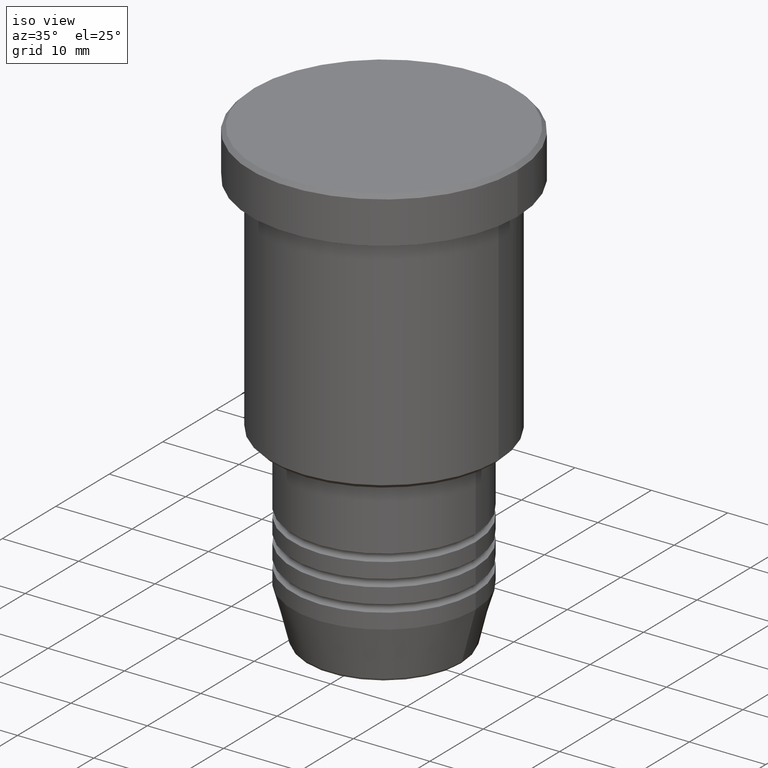
[diagram: clean part render]
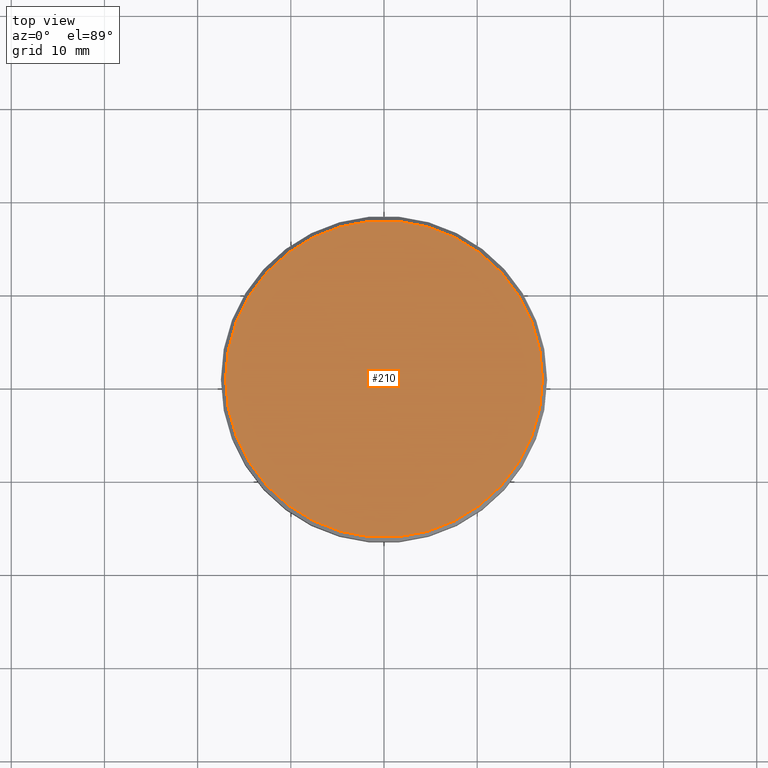
[diagram: tour spotlight — one face highlighted and labeled with its STEP entity id]
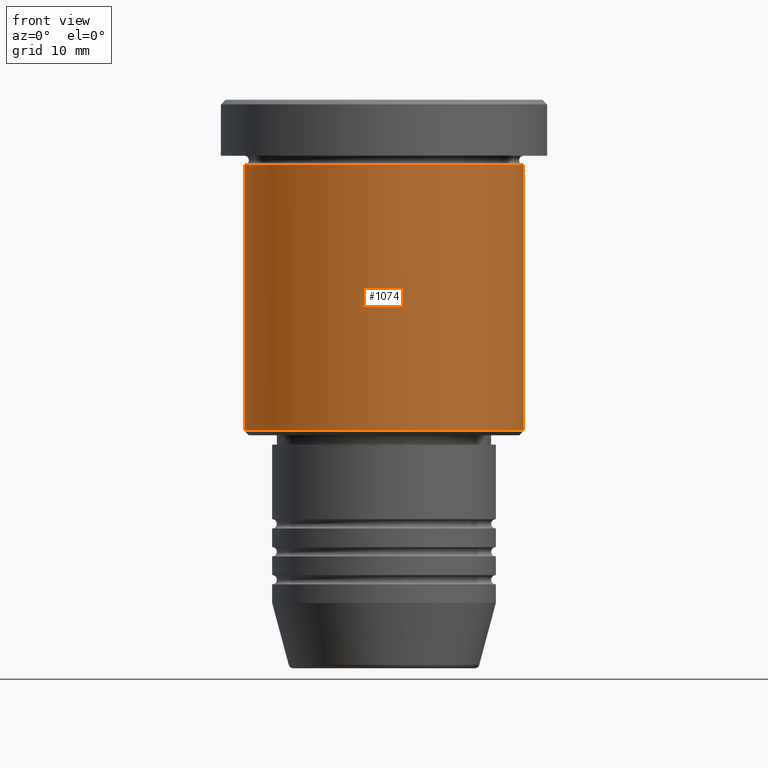
[diagram: tour spotlight — one face highlighted and labeled with its STEP entity id]
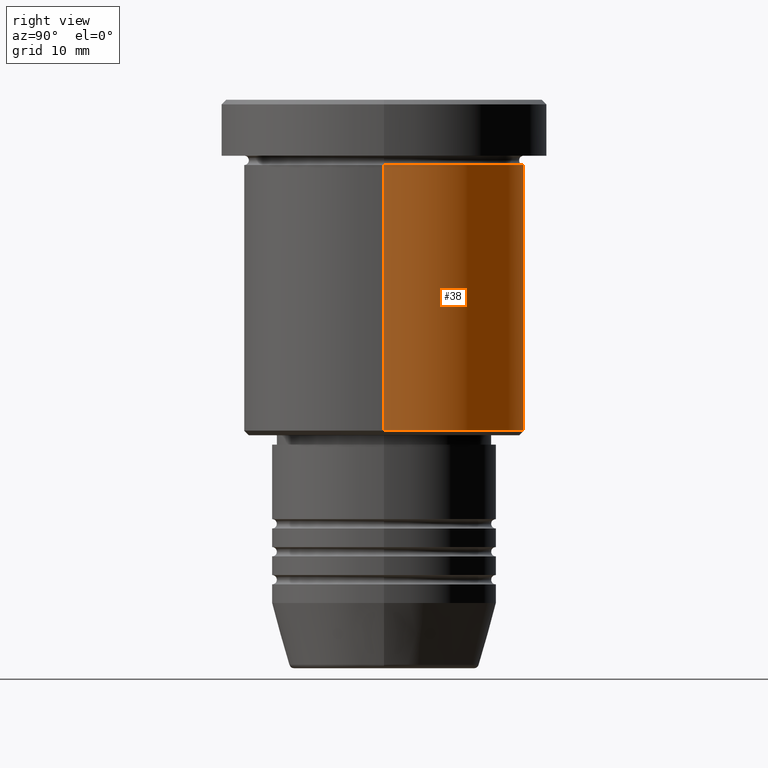
[diagram: tour spotlight — one face highlighted and labeled with its STEP entity id]
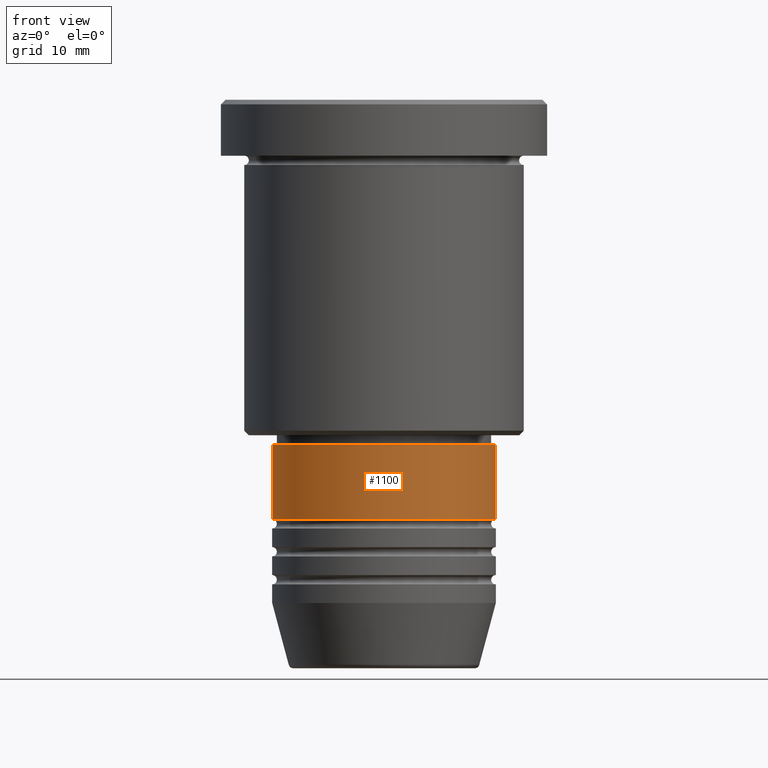
[diagram: tour spotlight — one face highlighted and labeled with its STEP entity id]
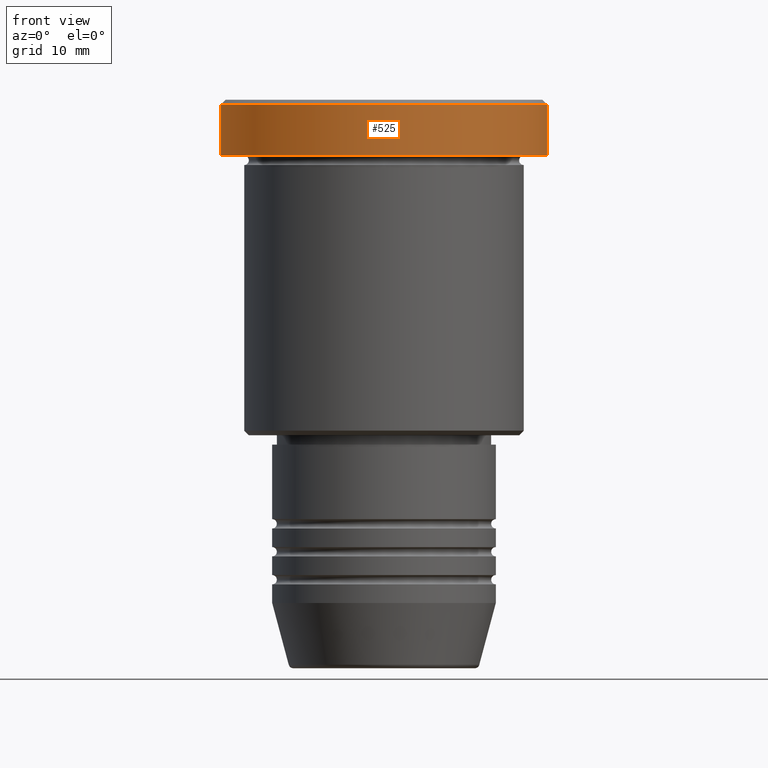
[diagram: tour spotlight — one face highlighted and labeled with its STEP entity id]
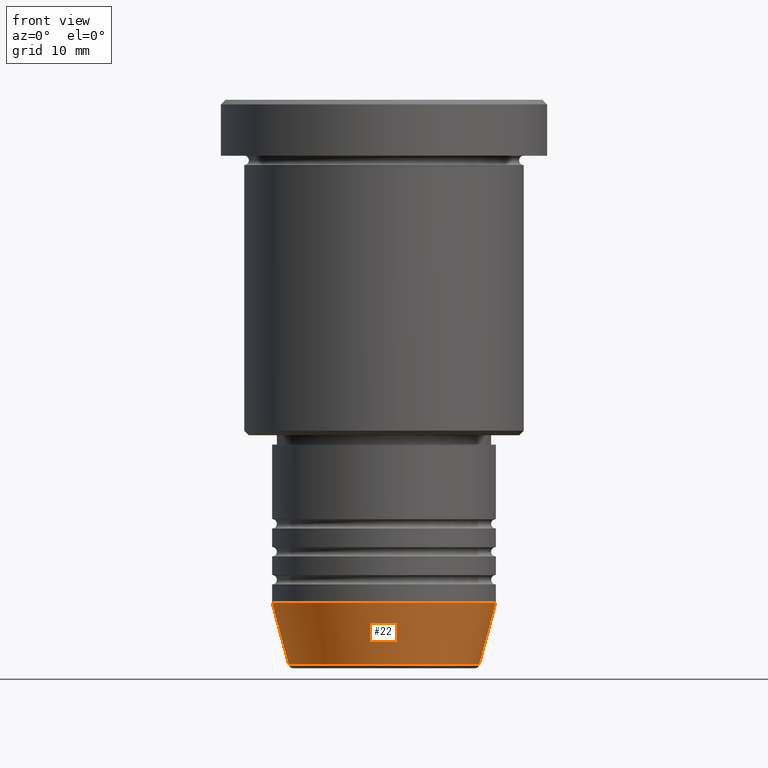
[diagram: tour spotlight — one face highlighted and labeled with its STEP entity id]
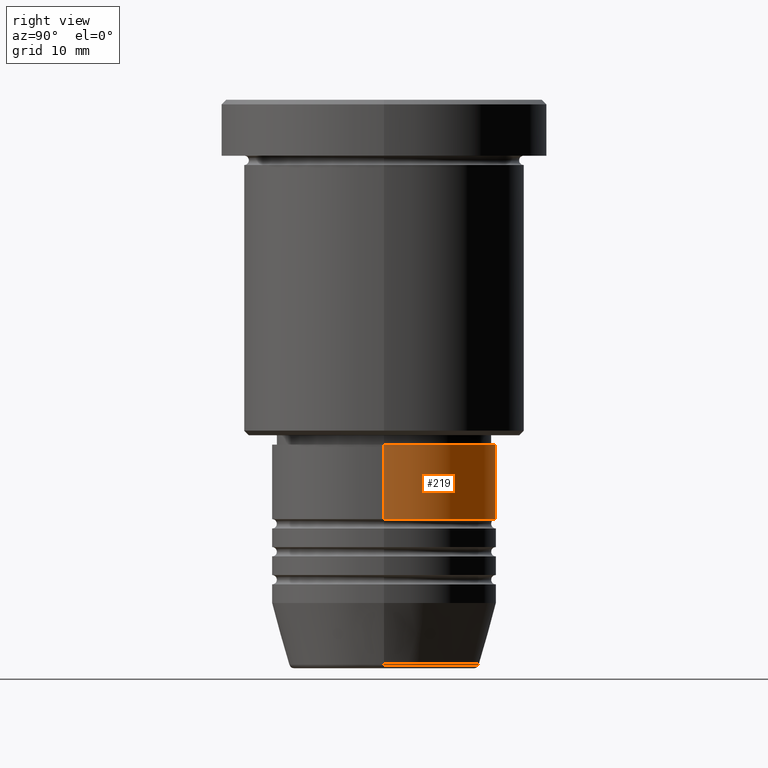
[diagram: tour spotlight — one face highlighted and labeled with its STEP entity id]
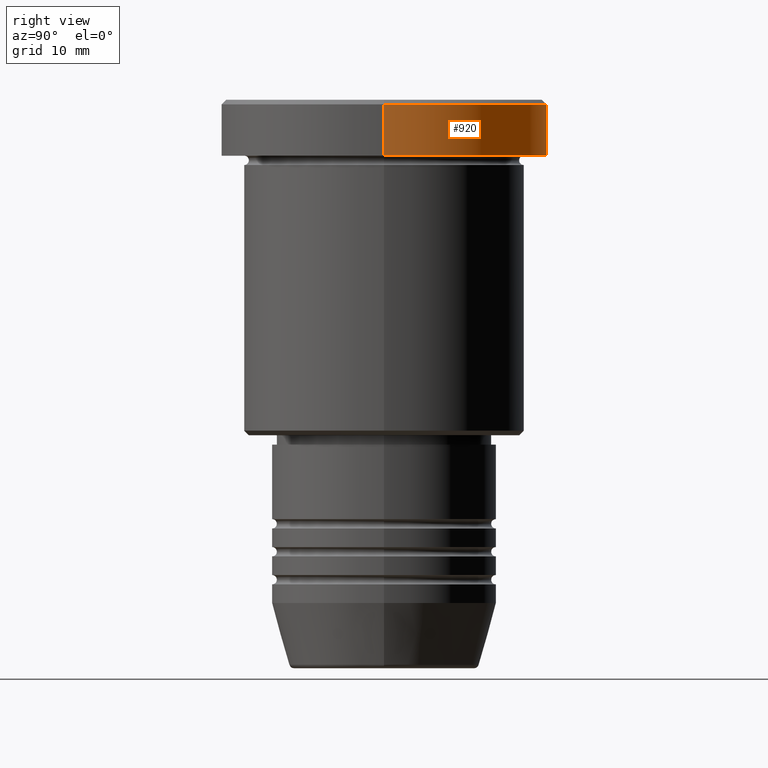
[diagram: tour spotlight — one face highlighted and labeled with its STEP entity id]
A machine part: a face-by-face anatomy tour. The part has 43 B-rep faces; the first image is the clean iso view, then the 8 largest visible faces are spotlighted one at a time (largest first), each with its STEP entity span.

Face 1 — top view, entity #210. In plain terms, the highlighted planar face has unit normal (0, -0, 1).
Definition (entity closure, byte-faithful):
#127 = FACE_OUTER_BOUND ( 'NONE', #468, .T. ) ;
#210 = ADVANCED_FACE ( 'NONE', ( #127 ), #676, .T. ) ;
#266 = DIRECTION ( 'NONE',  ( -0.000000000000000000, -0.000000000000000000, 1.000000000000000000 ) ) ;
#384 = AXIS2_PLACEMENT_3D ( 'NONE', #863, #608, #965 ) ;
#394 = DIRECTION ( 'NONE',  ( 0.000000000000000000, -0.000000000000000000, 1.000000000000000000 ) ) ;
#410 = CARTESIAN_POINT ( 'NONE',  ( 16.99999999999997868, 2.112515728529183278E-15, 0.000000000000000000 ) ) ;
#454 = VERTEX_POINT ( 'NONE', #410 ) ;
#468 = EDGE_LOOP ( 'NONE', ( #754, #755 ) ) ;
#488 = CARTESIAN_POINT ( 'NONE',  ( 0.000000000000000000, 0.000000000000000000, 0.000000000000000000 ) ) ;
#498 = DIRECTION ( 'NONE',  ( 1.000000000000000000, 0.000000000000000000, 0.000000000000000000 ) ) ;
#504 = CIRCLE ( 'NONE', #621, 16.99999999999997868 ) ;
#600 = AXIS2_PLACEMENT_3D ( 'NONE', #488, #394, #498 ) ;
#608 = DIRECTION ( 'NONE',  ( -0.000000000000000000, -0.000000000000000000, 1.000000000000000000 ) ) ;
#621 = AXIS2_PLACEMENT_3D ( 'NONE', #623, #266, #632 ) ;
#622 = CIRCLE ( 'NONE', #384, 16.99999999999997868 ) ;
#623 = CARTESIAN_POINT ( 'NONE',  ( 0.000000000000000000, 0.000000000000000000, 0.000000000000000000 ) ) ;
#632 = DIRECTION ( 'NONE',  ( 1.000000000000000000, 0.000000000000000000, 0.000000000000000000 ) ) ;
#676 = PLANE ( 'NONE',  #600 ) ;
#710 = VERTEX_POINT ( 'NONE', #1152 ) ;
#754 = ORIENTED_EDGE ( 'NONE', *, *, #808, .T. ) ;
#755 = ORIENTED_EDGE ( 'NONE', *, *, #1131, .T. ) ;
#808 = EDGE_CURVE ( 'NONE', #710, #454, #504, .T. ) ;
#863 = CARTESIAN_POINT ( 'NONE',  ( 0.000000000000000000, 0.000000000000000000, 0.000000000000000000 ) ) ;
#965 = DIRECTION ( 'NONE',  ( 1.000000000000000000, 0.000000000000000000, 0.000000000000000000 ) ) ;
#1131 = EDGE_CURVE ( 'NONE', #454, #710, #622, .T. ) ;
#1152 = CARTESIAN_POINT ( 'NONE',  ( -16.99999999999997868, 0.000000000000000000, 0.000000000000000000 ) ) ;

Face 2 — front view, entity #1074. In plain terms, the highlighted cylindrical surface (partial cylindrical patch) has radius 15 mm, axis along (-0, -0, 1).
Definition (entity closure, byte-faithful):
#41 = DIRECTION ( 'NONE',  ( 1.000000000000000000, 0.000000000000000000, 0.000000000000000000 ) ) ;
#56 = DIRECTION ( 'NONE',  ( -0.000000000000000000, -0.000000000000000000, 1.000000000000000000 ) ) ;
#197 = DIRECTION ( 'NONE',  ( -0.000000000000000000, -0.000000000000000000, 1.000000000000000000 ) ) ;
#238 = FACE_OUTER_BOUND ( 'NONE', #248, .T. ) ;
#248 = EDGE_LOOP ( 'NONE', ( #1180, #756, #652, #1181 ) ) ;
#261 = DIRECTION ( 'NONE',  ( -0.000000000000000000, -0.000000000000000000, 1.000000000000000000 ) ) ;
#269 = DIRECTION ( 'NONE',  ( -1.000000000000000000, 0.000000000000000000, 0.000000000000000000 ) ) ;
#320 = CYLINDRICAL_SURFACE ( 'NONE', #364, 15.00000000000000000 ) ;
#347 = CARTESIAN_POINT ( 'NONE',  ( 15.00000000000000000, 0.000000000000000000, 0.000000000000000000 ) ) ;
#355 = VERTEX_POINT ( 'NONE', #494 ) ;
#364 = AXIS2_PLACEMENT_3D ( 'NONE', #695, #1132, #497 ) ;
#443 = AXIS2_PLACEMENT_3D ( 'NONE', #1094, #984, #269 ) ;
#452 = EDGE_CURVE ( 'NONE', #355, #1023, #596, .T. ) ;
#494 = CARTESIAN_POINT ( 'NONE',  ( -15.00000000000000000, 1.836970198721029589E-15, -35.49999999999998579 ) ) ;
#497 = DIRECTION ( 'NONE',  ( 1.000000000000000000, 0.000000000000000000, 0.000000000000000000 ) ) ;
#506 = CARTESIAN_POINT ( 'NONE',  ( -15.00000000000000000, 1.836970198721029589E-15, 0.000000000000000000 ) ) ;
#557 = VERTEX_POINT ( 'NONE', #995 ) ;
#596 = LINE ( 'NONE', #506, #664 ) ;
#652 = ORIENTED_EDGE ( 'NONE', *, *, #826, .T. ) ;
#664 = VECTOR ( 'NONE', #56, 1000.000000000000000 ) ;
#695 = CARTESIAN_POINT ( 'NONE',  ( 0.000000000000000000, 0.000000000000000000, 0.000000000000000000 ) ) ;
#744 = CIRCLE ( 'NONE', #798, 15.00000000000000000 ) ;
#751 = CARTESIAN_POINT ( 'NONE',  ( 15.00000000000000000, 0.000000000000000000, -6.999999999999995559 ) ) ;
#756 = ORIENTED_EDGE ( 'NONE', *, *, #858, .T. ) ;
#798 = AXIS2_PLACEMENT_3D ( 'NONE', #1115, #197, #41 ) ;
#812 = CIRCLE ( 'NONE', #443, 15.00000000000000000 ) ;
#826 = EDGE_CURVE ( 'NONE', #557, #1029, #1081, .T. ) ;
#858 = EDGE_CURVE ( 'NONE', #355, #557, #812, .T. ) ;
#932 = CARTESIAN_POINT ( 'NONE',  ( -15.00000000000000000, 1.836970198721029589E-15, -6.999999999999995559 ) ) ;
#984 = DIRECTION ( 'NONE',  ( -0.000000000000000000, -0.000000000000000000, 1.000000000000000000 ) ) ;
#990 = EDGE_CURVE ( 'NONE', #1023, #1029, #744, .T. ) ;
#995 = CARTESIAN_POINT ( 'NONE',  ( 15.00000000000000000, 0.000000000000000000, -35.49999999999998579 ) ) ;
#1023 = VERTEX_POINT ( 'NONE', #932 ) ;
#1024 = VECTOR ( 'NONE', #261, 1000.000000000000000 ) ;
#1029 = VERTEX_POINT ( 'NONE', #751 ) ;
#1074 = ADVANCED_FACE ( 'NONE', ( #238 ), #320, .T. ) ;
#1081 = LINE ( 'NONE', #347, #1024 ) ;
#1094 = CARTESIAN_POINT ( 'NONE',  ( 0.000000000000000000, 0.000000000000000000, -35.49999999999998579 ) ) ;
#1115 = CARTESIAN_POINT ( 'NONE',  ( 0.000000000000000000, 0.000000000000000000, -6.999999999999995559 ) ) ;
#1132 = DIRECTION ( 'NONE',  ( -0.000000000000000000, -0.000000000000000000, 1.000000000000000000 ) ) ;
#1180 = ORIENTED_EDGE ( 'NONE', *, *, #452, .F. ) ;
#1181 = ORIENTED_EDGE ( 'NONE', *, *, #990, .F. ) ;

Face 3 — right view, entity #38. In plain terms, the highlighted cylindrical surface (partial cylindrical patch) has radius 15 mm, axis along (-0, -0, 1).
Definition (entity closure, byte-faithful):
#9 = AXIS2_PLACEMENT_3D ( 'NONE', #1058, #890, #724 ) ;
#17 = CYLINDRICAL_SURFACE ( 'NONE', #48, 15.00000000000000000 ) ;
#38 = ADVANCED_FACE ( 'NONE', ( #291 ), #17, .T. ) ;
#48 = AXIS2_PLACEMENT_3D ( 'NONE', #286, #993, #182 ) ;
#56 = DIRECTION ( 'NONE',  ( -0.000000000000000000, -0.000000000000000000, 1.000000000000000000 ) ) ;
#130 = AXIS2_PLACEMENT_3D ( 'NONE', #943, #198, #933 ) ;
#176 = ORIENTED_EDGE ( 'NONE', *, *, #324, .T. ) ;
#182 = DIRECTION ( 'NONE',  ( 1.000000000000000000, 0.000000000000000000, 0.000000000000000000 ) ) ;
#189 = EDGE_LOOP ( 'NONE', ( #176, #761, #840, #551 ) ) ;
#198 = DIRECTION ( 'NONE',  ( -0.000000000000000000, -0.000000000000000000, 1.000000000000000000 ) ) ;
#261 = DIRECTION ( 'NONE',  ( -0.000000000000000000, -0.000000000000000000, 1.000000000000000000 ) ) ;
#286 = CARTESIAN_POINT ( 'NONE',  ( 0.000000000000000000, 0.000000000000000000, 0.000000000000000000 ) ) ;
#291 = FACE_OUTER_BOUND ( 'NONE', #189, .T. ) ;
#324 = EDGE_CURVE ( 'NONE', #557, #355, #401, .T. ) ;
#347 = CARTESIAN_POINT ( 'NONE',  ( 15.00000000000000000, 0.000000000000000000, 0.000000000000000000 ) ) ;
#355 = VERTEX_POINT ( 'NONE', #494 ) ;
#401 = CIRCLE ( 'NONE', #130, 15.00000000000000000 ) ;
#452 = EDGE_CURVE ( 'NONE', #355, #1023, #596, .T. ) ;
#494 = CARTESIAN_POINT ( 'NONE',  ( -15.00000000000000000, 1.836970198721029589E-15, -35.49999999999998579 ) ) ;
#506 = CARTESIAN_POINT ( 'NONE',  ( -15.00000000000000000, 1.836970198721029589E-15, 0.000000000000000000 ) ) ;
#511 = EDGE_CURVE ( 'NONE', #1029, #1023, #517, .T. ) ;
#517 = CIRCLE ( 'NONE', #9, 15.00000000000000000 ) ;
#551 = ORIENTED_EDGE ( 'NONE', *, *, #826, .F. ) ;
#557 = VERTEX_POINT ( 'NONE', #995 ) ;
#596 = LINE ( 'NONE', #506, #664 ) ;
#664 = VECTOR ( 'NONE', #56, 1000.000000000000000 ) ;
#724 = DIRECTION ( 'NONE',  ( 1.000000000000000000, 0.000000000000000000, 0.000000000000000000 ) ) ;
#751 = CARTESIAN_POINT ( 'NONE',  ( 15.00000000000000000, 0.000000000000000000, -6.999999999999995559 ) ) ;
#761 = ORIENTED_EDGE ( 'NONE', *, *, #452, .T. ) ;
#826 = EDGE_CURVE ( 'NONE', #557, #1029, #1081, .T. ) ;
#840 = ORIENTED_EDGE ( 'NONE', *, *, #511, .F. ) ;
#890 = DIRECTION ( 'NONE',  ( -0.000000000000000000, -0.000000000000000000, 1.000000000000000000 ) ) ;
#932 = CARTESIAN_POINT ( 'NONE',  ( -15.00000000000000000, 1.836970198721029589E-15, -6.999999999999995559 ) ) ;
#933 = DIRECTION ( 'NONE',  ( -1.000000000000000000, 0.000000000000000000, 0.000000000000000000 ) ) ;
#943 = CARTESIAN_POINT ( 'NONE',  ( 0.000000000000000000, 0.000000000000000000, -35.49999999999998579 ) ) ;
#993 = DIRECTION ( 'NONE',  ( -0.000000000000000000, -0.000000000000000000, 1.000000000000000000 ) ) ;
#995 = CARTESIAN_POINT ( 'NONE',  ( 15.00000000000000000, 0.000000000000000000, -35.49999999999998579 ) ) ;
#1023 = VERTEX_POINT ( 'NONE', #932 ) ;
#1024 = VECTOR ( 'NONE', #261, 1000.000000000000000 ) ;
#1029 = VERTEX_POINT ( 'NONE', #751 ) ;
#1058 = CARTESIAN_POINT ( 'NONE',  ( 0.000000000000000000, 0.000000000000000000, -6.999999999999995559 ) ) ;
#1081 = LINE ( 'NONE', #347, #1024 ) ;

Face 4 — front view, entity #1100. In plain terms, the highlighted cylindrical surface (partial cylindrical patch) has radius 12 mm, axis along (-0, -0, 1).
Definition (entity closure, byte-faithful):
#1 = EDGE_CURVE ( 'NONE', #283, #112, #82, .T. ) ;
#2 = DIRECTION ( 'NONE',  ( -0.000000000000000000, -0.000000000000000000, 1.000000000000000000 ) ) ;
#4 = DIRECTION ( 'NONE',  ( 1.000000000000000000, 0.000000000000000000, 0.000000000000000000 ) ) ;
#30 = AXIS2_PLACEMENT_3D ( 'NONE', #752, #650, #1117 ) ;
#58 = DIRECTION ( 'NONE',  ( 1.000000000000000000, 0.000000000000000000, 0.000000000000000000 ) ) ;
#82 = CIRCLE ( 'NONE', #30, 12.00000000000000000 ) ;
#112 = VERTEX_POINT ( 'NONE', #1034 ) ;
#113 = AXIS2_PLACEMENT_3D ( 'NONE', #591, #873, #58 ) ;
#243 = EDGE_CURVE ( 'NONE', #810, #112, #780, .T. ) ;
#283 = VERTEX_POINT ( 'NONE', #696 ) ;
#358 = CARTESIAN_POINT ( 'NONE',  ( 12.00000000000000000, 0.000000000000000000, -44.99999999999997158 ) ) ;
#415 = CARTESIAN_POINT ( 'NONE',  ( -12.00000000000000000, 1.469576158976823947E-15, -44.99999999999997158 ) ) ;
#445 = CARTESIAN_POINT ( 'NONE',  ( 0.000000000000000000, 0.000000000000000000, -44.99999999999997158 ) ) ;
#478 = ORIENTED_EDGE ( 'NONE', *, *, #1, .F. ) ;
#520 = AXIS2_PLACEMENT_3D ( 'NONE', #445, #1178, #4 ) ;
#591 = CARTESIAN_POINT ( 'NONE',  ( 0.000000000000000000, 0.000000000000000000, 0.000000000000000000 ) ) ;
#640 = LINE ( 'NONE', #1003, #1121 ) ;
#650 = DIRECTION ( 'NONE',  ( -0.000000000000000000, -0.000000000000000000, 1.000000000000000000 ) ) ;
#696 = CARTESIAN_POINT ( 'NONE',  ( -12.00000000000000000, 1.469576158976823947E-15, -36.99999999999999289 ) ) ;
#703 = CYLINDRICAL_SURFACE ( 'NONE', #113, 12.00000000000000000 ) ;
#731 = ORIENTED_EDGE ( 'NONE', *, *, #243, .T. ) ;
#752 = CARTESIAN_POINT ( 'NONE',  ( 0.000000000000000000, 0.000000000000000000, -36.99999999999999289 ) ) ;
#763 = ORIENTED_EDGE ( 'NONE', *, *, #770, .T. ) ;
#770 = EDGE_CURVE ( 'NONE', #1128, #810, #1045, .T. ) ;
#780 = LINE ( 'NONE', #1095, #1060 ) ;
#810 = VERTEX_POINT ( 'NONE', #358 ) ;
#873 = DIRECTION ( 'NONE',  ( -0.000000000000000000, -0.000000000000000000, 1.000000000000000000 ) ) ;
#874 = EDGE_CURVE ( 'NONE', #1128, #283, #640, .T. ) ;
#969 = DIRECTION ( 'NONE',  ( -0.000000000000000000, -0.000000000000000000, 1.000000000000000000 ) ) ;
#1003 = CARTESIAN_POINT ( 'NONE',  ( -12.00000000000000000, 1.469576158976823947E-15, 0.000000000000000000 ) ) ;
#1016 = ORIENTED_EDGE ( 'NONE', *, *, #874, .F. ) ;
#1034 = CARTESIAN_POINT ( 'NONE',  ( 12.00000000000000000, 0.000000000000000000, -36.99999999999999289 ) ) ;
#1045 = CIRCLE ( 'NONE', #520, 12.00000000000000000 ) ;
#1060 = VECTOR ( 'NONE', #2, 1000.000000000000000 ) ;
#1084 = EDGE_LOOP ( 'NONE', ( #1016, #763, #731, #478 ) ) ;
#1095 = CARTESIAN_POINT ( 'NONE',  ( 12.00000000000000000, 0.000000000000000000, 0.000000000000000000 ) ) ;
#1100 = ADVANCED_FACE ( 'NONE', ( #1145 ), #703, .T. ) ;
#1117 = DIRECTION ( 'NONE',  ( 1.000000000000000000, 0.000000000000000000, 0.000000000000000000 ) ) ;
#1121 = VECTOR ( 'NONE', #969, 1000.000000000000000 ) ;
#1128 = VERTEX_POINT ( 'NONE', #415 ) ;
#1145 = FACE_OUTER_BOUND ( 'NONE', #1084, .T. ) ;
#1178 = DIRECTION ( 'NONE',  ( -0.000000000000000000, -0.000000000000000000, 1.000000000000000000 ) ) ;

Face 5 — front view, entity #525. In plain terms, the highlighted cylindrical surface (partial cylindrical patch) has radius 17.5 mm, axis along (-0, -0, 1).
Definition (entity closure, byte-faithful):
#87 = CIRCLE ( 'NONE', #150, 17.50000000000000000 ) ;
#120 = CARTESIAN_POINT ( 'NONE',  ( -17.50000000000000000, 2.143131898507868248E-15, 0.000000000000000000 ) ) ;
#124 = VERTEX_POINT ( 'NONE', #407 ) ;
#150 = AXIS2_PLACEMENT_3D ( 'NONE', #396, #1049, #686 ) ;
#154 = LINE ( 'NONE', #775, #444 ) ;
#166 = VERTEX_POINT ( 'NONE', #508 ) ;
#193 = CARTESIAN_POINT ( 'NONE',  ( 17.50000000000000000, 0.000000000000000000, -0.5000000000000143219 ) ) ;
#220 = DIRECTION ( 'NONE',  ( -0.000000000000000000, -0.000000000000000000, 1.000000000000000000 ) ) ;
#245 = CARTESIAN_POINT ( 'NONE',  ( -17.50000000000000000, 2.143131898507868248E-15, -0.5000000000000143219 ) ) ;
#294 = ORIENTED_EDGE ( 'NONE', *, *, #1087, .T. ) ;
#312 = AXIS2_PLACEMENT_3D ( 'NONE', #746, #648, #1012 ) ;
#380 = CIRCLE ( 'NONE', #503, 17.50000000000000000 ) ;
#396 = CARTESIAN_POINT ( 'NONE',  ( 0.000000000000000000, 0.000000000000000000, -0.5000000000000143219 ) ) ;
#407 = CARTESIAN_POINT ( 'NONE',  ( 17.50000000000000000, 0.000000000000000000, -5.999999999999995559 ) ) ;
#411 = EDGE_CURVE ( 'NONE', #166, #124, #380, .T. ) ;
#436 = DIRECTION ( 'NONE',  ( 1.000000000000000000, 0.000000000000000000, 0.000000000000000000 ) ) ;
#444 = VECTOR ( 'NONE', #510, 1000.000000000000000 ) ;
#449 = CARTESIAN_POINT ( 'NONE',  ( 0.000000000000000000, 0.000000000000000000, -5.999999999999995559 ) ) ;
#503 = AXIS2_PLACEMENT_3D ( 'NONE', #449, #546, #436 ) ;
#508 = CARTESIAN_POINT ( 'NONE',  ( -17.50000000000000000, 2.143131898507868248E-15, -5.999999999999995559 ) ) ;
#510 = DIRECTION ( 'NONE',  ( -0.000000000000000000, -0.000000000000000000, 1.000000000000000000 ) ) ;
#525 = ADVANCED_FACE ( 'NONE', ( #631 ), #675, .T. ) ;
#535 = VERTEX_POINT ( 'NONE', #193 ) ;
#546 = DIRECTION ( 'NONE',  ( -0.000000000000000000, -0.000000000000000000, 1.000000000000000000 ) ) ;
#570 = VECTOR ( 'NONE', #220, 1000.000000000000000 ) ;
#612 = VERTEX_POINT ( 'NONE', #245 ) ;
#631 = FACE_OUTER_BOUND ( 'NONE', #689, .T. ) ;
#648 = DIRECTION ( 'NONE',  ( -0.000000000000000000, -0.000000000000000000, 1.000000000000000000 ) ) ;
#675 = CYLINDRICAL_SURFACE ( 'NONE', #312, 17.50000000000000000 ) ;
#686 = DIRECTION ( 'NONE',  ( 1.000000000000000000, 0.000000000000000000, 0.000000000000000000 ) ) ;
#689 = EDGE_LOOP ( 'NONE', ( #732, #790, #294, #1013 ) ) ;
#732 = ORIENTED_EDGE ( 'NONE', *, *, #963, .F. ) ;
#746 = CARTESIAN_POINT ( 'NONE',  ( 0.000000000000000000, 0.000000000000000000, 0.000000000000000000 ) ) ;
#775 = CARTESIAN_POINT ( 'NONE',  ( 17.50000000000000000, 0.000000000000000000, 0.000000000000000000 ) ) ;
#790 = ORIENTED_EDGE ( 'NONE', *, *, #411, .T. ) ;
#937 = LINE ( 'NONE', #120, #570 ) ;
#963 = EDGE_CURVE ( 'NONE', #166, #612, #937, .T. ) ;
#1012 = DIRECTION ( 'NONE',  ( 1.000000000000000000, 0.000000000000000000, 0.000000000000000000 ) ) ;
#1013 = ORIENTED_EDGE ( 'NONE', *, *, #1148, .T. ) ;
#1049 = DIRECTION ( 'NONE',  ( 0.000000000000000000, 0.000000000000000000, -1.000000000000000000 ) ) ;
#1087 = EDGE_CURVE ( 'NONE', #124, #535, #154, .T. ) ;
#1148 = EDGE_CURVE ( 'NONE', #535, #612, #87, .T. ) ;

Face 6 — front view, entity #22. In plain terms, the highlighted conical surface has half-angle 15 deg.
Definition (entity closure, byte-faithful):
#12 = CIRCLE ( 'NONE', #945, 10.22365507213719305 ) ;
#22 = ADVANCED_FACE ( 'NONE', ( #460 ), #487, .T. ) ;
#27 = CARTESIAN_POINT ( 'NONE',  ( 0.000000000000000000, 0.000000000000000000, -60.62940952255125637 ) ) ;
#60 = DIRECTION ( 'NONE',  ( 1.000000000000000000, 0.000000000000000000, 0.000000000000000000 ) ) ;
#61 = ORIENTED_EDGE ( 'NONE', *, *, #791, .T. ) ;
#74 = VERTEX_POINT ( 'NONE', #819 ) ;
#97 = ORIENTED_EDGE ( 'NONE', *, *, #191, .F. ) ;
#172 = VERTEX_POINT ( 'NONE', #869 ) ;
#191 = EDGE_CURVE ( 'NONE', #172, #645, #302, .T. ) ;
#217 = DIRECTION ( 'NONE',  ( -0.2588190451025213501, 3.169619151431772337E-17, 0.9659258262890680902 ) ) ;
#232 = EDGE_LOOP ( 'NONE', ( #97, #356, #61, #1032 ) ) ;
#302 = LINE ( 'NONE', #1130, #954 ) ;
#340 = DIRECTION ( 'NONE',  ( 0.2588190451025213501, 0.000000000000000000, 0.9659258262890680902 ) ) ;
#356 = ORIENTED_EDGE ( 'NONE', *, *, #1005, .T. ) ;
#375 = DIRECTION ( 'NONE',  ( 1.000000000000000000, 0.000000000000000000, 0.000000000000000000 ) ) ;
#422 = CIRCLE ( 'NONE', #855, 12.00000000000000000 ) ;
#460 = FACE_OUTER_BOUND ( 'NONE', #232, .T. ) ;
#487 = CONICAL_SURFACE ( 'NONE', #663, 12.00000000000000000, 0.2617993877991500740 ) ;
#540 = CARTESIAN_POINT ( 'NONE',  ( -12.00000000000000000, 1.469576158976823947E-15, -53.99999999999999289 ) ) ;
#617 = EDGE_CURVE ( 'NONE', #645, #74, #422, .T. ) ;
#625 = CARTESIAN_POINT ( 'NONE',  ( 10.22365507213719305, 0.000000000000000000, -60.62940952255125637 ) ) ;
#629 = CARTESIAN_POINT ( 'NONE',  ( 0.000000000000000000, 0.000000000000000000, -53.99999999999999289 ) ) ;
#634 = DIRECTION ( 'NONE',  ( -0.000000000000000000, -0.000000000000000000, 1.000000000000000000 ) ) ;
#645 = VERTEX_POINT ( 'NONE', #540 ) ;
#663 = AXIS2_PLACEMENT_3D ( 'NONE', #921, #634, #837 ) ;
#715 = DIRECTION ( 'NONE',  ( -0.000000000000000000, -0.000000000000000000, 1.000000000000000000 ) ) ;
#771 = VERTEX_POINT ( 'NONE', #625 ) ;
#791 = EDGE_CURVE ( 'NONE', #771, #74, #1171, .T. ) ;
#815 = CARTESIAN_POINT ( 'NONE',  ( 12.00000000000000000, 0.000000000000000000, -53.99999999999999289 ) ) ;
#819 = CARTESIAN_POINT ( 'NONE',  ( 12.00000000000000000, 0.000000000000000000, -53.99999999999999289 ) ) ;
#837 = DIRECTION ( 'NONE',  ( 1.000000000000000000, 0.000000000000000000, 0.000000000000000000 ) ) ;
#855 = AXIS2_PLACEMENT_3D ( 'NONE', #629, #715, #60 ) ;
#869 = CARTESIAN_POINT ( 'NONE',  ( -10.22365507213719305, 1.360806402472382941E-15, -60.62940952255125637 ) ) ;
#921 = CARTESIAN_POINT ( 'NONE',  ( 0.000000000000000000, 0.000000000000000000, -53.99999999999999289 ) ) ;
#925 = DIRECTION ( 'NONE',  ( -0.000000000000000000, -0.000000000000000000, 1.000000000000000000 ) ) ;
#945 = AXIS2_PLACEMENT_3D ( 'NONE', #27, #925, #375 ) ;
#954 = VECTOR ( 'NONE', #217, 1000.000000000000000 ) ;
#1005 = EDGE_CURVE ( 'NONE', #172, #771, #12, .T. ) ;
#1032 = ORIENTED_EDGE ( 'NONE', *, *, #617, .F. ) ;
#1130 = CARTESIAN_POINT ( 'NONE',  ( -12.00000000000000000, 1.469576158976823947E-15, -53.99999999999999289 ) ) ;
#1140 = VECTOR ( 'NONE', #340, 1000.000000000000000 ) ;
#1171 = LINE ( 'NONE', #815, #1140 ) ;

Face 7 — right view, entity #219. In plain terms, the highlighted cylindrical surface (partial cylindrical patch) has radius 12 mm, axis along (-0, -0, 1).
Definition (entity closure, byte-faithful):
#2 = DIRECTION ( 'NONE',  ( -0.000000000000000000, -0.000000000000000000, 1.000000000000000000 ) ) ;
#45 = DIRECTION ( 'NONE',  ( 1.000000000000000000, 0.000000000000000000, 0.000000000000000000 ) ) ;
#101 = ORIENTED_EDGE ( 'NONE', *, *, #243, .F. ) ;
#112 = VERTEX_POINT ( 'NONE', #1034 ) ;
#219 = ADVANCED_FACE ( 'NONE', ( #861 ), #967, .T. ) ;
#223 = DIRECTION ( 'NONE',  ( -0.000000000000000000, -0.000000000000000000, 1.000000000000000000 ) ) ;
#243 = EDGE_CURVE ( 'NONE', #810, #112, #780, .T. ) ;
#252 = DIRECTION ( 'NONE',  ( -0.000000000000000000, -0.000000000000000000, 1.000000000000000000 ) ) ;
#256 = CIRCLE ( 'NONE', #1173, 12.00000000000000000 ) ;
#283 = VERTEX_POINT ( 'NONE', #696 ) ;
#325 = CARTESIAN_POINT ( 'NONE',  ( 0.000000000000000000, 0.000000000000000000, -44.99999999999997158 ) ) ;
#358 = CARTESIAN_POINT ( 'NONE',  ( 12.00000000000000000, 0.000000000000000000, -44.99999999999997158 ) ) ;
#409 = DIRECTION ( 'NONE',  ( 1.000000000000000000, 0.000000000000000000, 0.000000000000000000 ) ) ;
#415 = CARTESIAN_POINT ( 'NONE',  ( -12.00000000000000000, 1.469576158976823947E-15, -44.99999999999997158 ) ) ;
#514 = CARTESIAN_POINT ( 'NONE',  ( 0.000000000000000000, 0.000000000000000000, 0.000000000000000000 ) ) ;
#541 = AXIS2_PLACEMENT_3D ( 'NONE', #514, #252, #598 ) ;
#598 = DIRECTION ( 'NONE',  ( 1.000000000000000000, 0.000000000000000000, 0.000000000000000000 ) ) ;
#610 = EDGE_CURVE ( 'NONE', #112, #283, #256, .T. ) ;
#640 = LINE ( 'NONE', #1003, #1121 ) ;
#696 = CARTESIAN_POINT ( 'NONE',  ( -12.00000000000000000, 1.469576158976823947E-15, -36.99999999999999289 ) ) ;
#753 = ORIENTED_EDGE ( 'NONE', *, *, #1050, .T. ) ;
#780 = LINE ( 'NONE', #1095, #1060 ) ;
#810 = VERTEX_POINT ( 'NONE', #358 ) ;
#836 = CIRCLE ( 'NONE', #871, 12.00000000000000000 ) ;
#861 = FACE_OUTER_BOUND ( 'NONE', #885, .T. ) ;
#864 = DIRECTION ( 'NONE',  ( -0.000000000000000000, -0.000000000000000000, 1.000000000000000000 ) ) ;
#871 = AXIS2_PLACEMENT_3D ( 'NONE', #325, #223, #409 ) ;
#874 = EDGE_CURVE ( 'NONE', #1128, #283, #640, .T. ) ;
#885 = EDGE_LOOP ( 'NONE', ( #753, #1052, #892, #101 ) ) ;
#892 = ORIENTED_EDGE ( 'NONE', *, *, #610, .F. ) ;
#967 = CYLINDRICAL_SURFACE ( 'NONE', #541, 12.00000000000000000 ) ;
#969 = DIRECTION ( 'NONE',  ( -0.000000000000000000, -0.000000000000000000, 1.000000000000000000 ) ) ;
#1003 = CARTESIAN_POINT ( 'NONE',  ( -12.00000000000000000, 1.469576158976823947E-15, 0.000000000000000000 ) ) ;
#1034 = CARTESIAN_POINT ( 'NONE',  ( 12.00000000000000000, 0.000000000000000000, -36.99999999999999289 ) ) ;
#1046 = CARTESIAN_POINT ( 'NONE',  ( 0.000000000000000000, 0.000000000000000000, -36.99999999999999289 ) ) ;
#1050 = EDGE_CURVE ( 'NONE', #810, #1128, #836, .T. ) ;
#1052 = ORIENTED_EDGE ( 'NONE', *, *, #874, .T. ) ;
#1060 = VECTOR ( 'NONE', #2, 1000.000000000000000 ) ;
#1095 = CARTESIAN_POINT ( 'NONE',  ( 12.00000000000000000, 0.000000000000000000, 0.000000000000000000 ) ) ;
#1121 = VECTOR ( 'NONE', #969, 1000.000000000000000 ) ;
#1128 = VERTEX_POINT ( 'NONE', #415 ) ;
#1173 = AXIS2_PLACEMENT_3D ( 'NONE', #1046, #864, #45 ) ;

Face 8 — right view, entity #920. In plain terms, the highlighted cylindrical surface (partial cylindrical patch) has radius 17.5 mm, axis along (-0, -0, 1).
Definition (entity closure, byte-faithful):
#5 = ORIENTED_EDGE ( 'NONE', *, *, #1162, .T. ) ;
#37 = CIRCLE ( 'NONE', #959, 17.50000000000000000 ) ;
#54 = ORIENTED_EDGE ( 'NONE', *, *, #1087, .F. ) ;
#84 = CARTESIAN_POINT ( 'NONE',  ( 0.000000000000000000, 0.000000000000000000, -0.5000000000000143219 ) ) ;
#96 = ORIENTED_EDGE ( 'NONE', *, *, #430, .T. ) ;
#120 = CARTESIAN_POINT ( 'NONE',  ( -17.50000000000000000, 2.143131898507868248E-15, 0.000000000000000000 ) ) ;
#124 = VERTEX_POINT ( 'NONE', #407 ) ;
#154 = LINE ( 'NONE', #775, #444 ) ;
#166 = VERTEX_POINT ( 'NONE', #508 ) ;
#193 = CARTESIAN_POINT ( 'NONE',  ( 17.50000000000000000, 0.000000000000000000, -0.5000000000000143219 ) ) ;
#220 = DIRECTION ( 'NONE',  ( -0.000000000000000000, -0.000000000000000000, 1.000000000000000000 ) ) ;
#222 = AXIS2_PLACEMENT_3D ( 'NONE', #84, #353, #906 ) ;
#245 = CARTESIAN_POINT ( 'NONE',  ( -17.50000000000000000, 2.143131898507868248E-15, -0.5000000000000143219 ) ) ;
#330 = EDGE_LOOP ( 'NONE', ( #5, #467, #96, #54 ) ) ;
#353 = DIRECTION ( 'NONE',  ( 0.000000000000000000, 0.000000000000000000, -1.000000000000000000 ) ) ;
#407 = CARTESIAN_POINT ( 'NONE',  ( 17.50000000000000000, 0.000000000000000000, -5.999999999999995559 ) ) ;
#430 = EDGE_CURVE ( 'NONE', #612, #535, #1172, .T. ) ;
#444 = VECTOR ( 'NONE', #510, 1000.000000000000000 ) ;
#467 = ORIENTED_EDGE ( 'NONE', *, *, #963, .T. ) ;
#480 = CARTESIAN_POINT ( 'NONE',  ( 0.000000000000000000, 0.000000000000000000, 0.000000000000000000 ) ) ;
#508 = CARTESIAN_POINT ( 'NONE',  ( -17.50000000000000000, 2.143131898507868248E-15, -5.999999999999995559 ) ) ;
#510 = DIRECTION ( 'NONE',  ( -0.000000000000000000, -0.000000000000000000, 1.000000000000000000 ) ) ;
#535 = VERTEX_POINT ( 'NONE', #193 ) ;
#570 = VECTOR ( 'NONE', #220, 1000.000000000000000 ) ;
#612 = VERTEX_POINT ( 'NONE', #245 ) ;
#668 = DIRECTION ( 'NONE',  ( 1.000000000000000000, 0.000000000000000000, 0.000000000000000000 ) ) ;
#690 = DIRECTION ( 'NONE',  ( -0.000000000000000000, -0.000000000000000000, 1.000000000000000000 ) ) ;
#772 = DIRECTION ( 'NONE',  ( -0.000000000000000000, -0.000000000000000000, 1.000000000000000000 ) ) ;
#775 = CARTESIAN_POINT ( 'NONE',  ( 17.50000000000000000, 0.000000000000000000, 0.000000000000000000 ) ) ;
#807 = FACE_OUTER_BOUND ( 'NONE', #330, .T. ) ;
#856 = AXIS2_PLACEMENT_3D ( 'NONE', #480, #772, #668 ) ;
#906 = DIRECTION ( 'NONE',  ( 1.000000000000000000, 0.000000000000000000, 0.000000000000000000 ) ) ;
#920 = ADVANCED_FACE ( 'NONE', ( #807 ), #1033, .T. ) ;
#937 = LINE ( 'NONE', #120, #570 ) ;
#949 = CARTESIAN_POINT ( 'NONE',  ( 0.000000000000000000, 0.000000000000000000, -5.999999999999995559 ) ) ;
#959 = AXIS2_PLACEMENT_3D ( 'NONE', #949, #690, #1053 ) ;
#963 = EDGE_CURVE ( 'NONE', #166, #612, #937, .T. ) ;
#1033 = CYLINDRICAL_SURFACE ( 'NONE', #856, 17.50000000000000000 ) ;
#1053 = DIRECTION ( 'NONE',  ( 1.000000000000000000, 0.000000000000000000, 0.000000000000000000 ) ) ;
#1087 = EDGE_CURVE ( 'NONE', #124, #535, #154, .T. ) ;
#1162 = EDGE_CURVE ( 'NONE', #124, #166, #37, .T. ) ;
#1172 = CIRCLE ( 'NONE', #222, 17.50000000000000000 ) ;